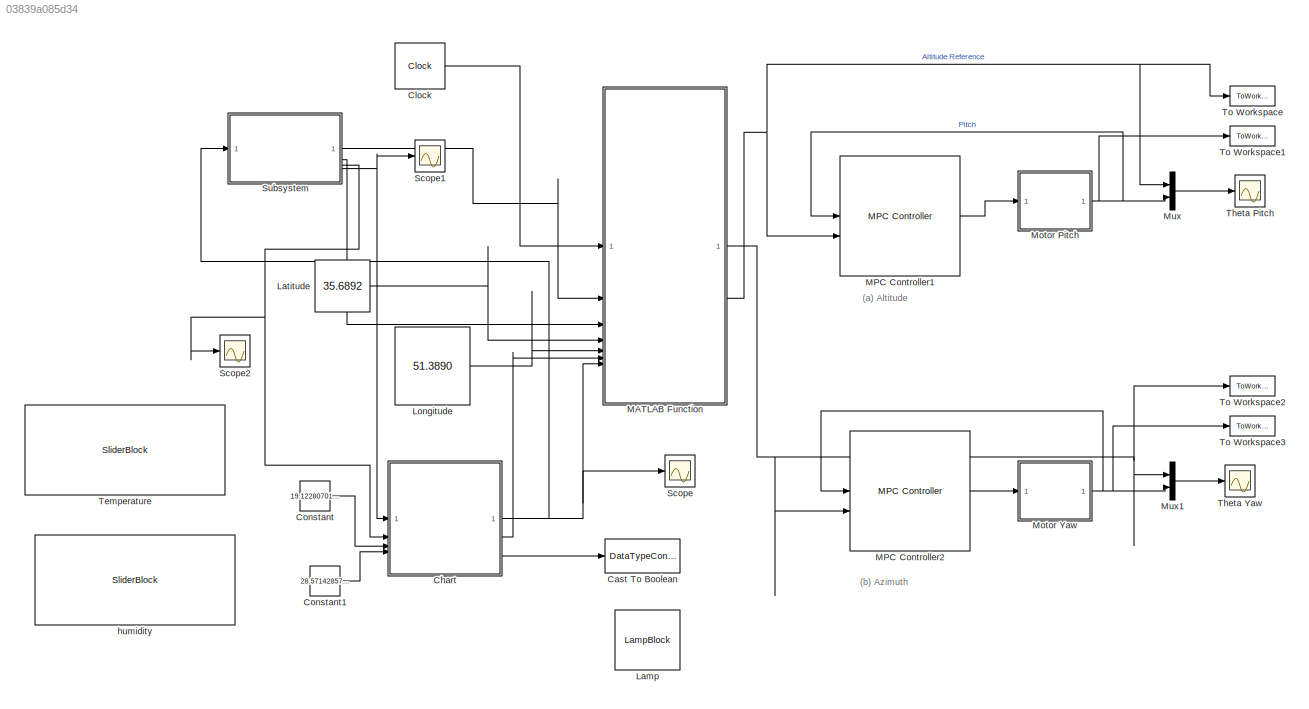
MODEL slx_03839a085d34
KIND model
CONFIG AbsTol = auto
CONFIG EnableMultiTasking = off
CONFIG FixedStep = 0.1
CONFIG InitFcn = clear all\nclc\n%% PARAMETERS OF DC MOTOR\nR=18.2214;\nL=0.000866;\nKb=0.030941093;\nKm=0.030941093;\nJ=0.00009;\nB1=0.000025;\n\n%% LOADING MPC\nload mpc1.mat
CONFIG MaxStep = 1
CONFIG MinStep = auto
CONFIG RelTol = 1e-5
CONFIG SampleTimeConstraint = Unconstrained
CONFIG SolverName = VariableStepAuto
CONFIG StartTime = 0.0
CONFIG StopTime = 86400
BLOCK [DataTypeConversion] Cast To Boolean
  OutDataTypeStr = boolean
  RndMeth = Floor
  SaturateOnIntegerOverflow = off
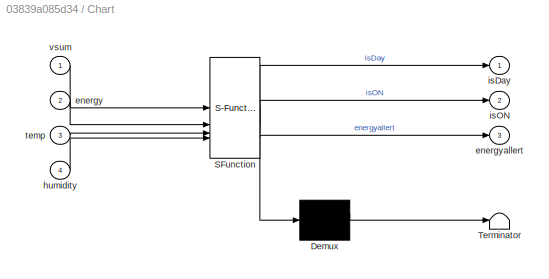
BLOCK [SubSystem] Chart
  ErrorFcn = Stateflow.Translate.translate
  PermitHierarchicalResolution = ExplicitOnly
  PortSchema = {"entries":[{"content":{"sides":[{"content":{"connectorIds":["In2","In1","In3","In4"]},"type":"ConnectorPlacement.EquallySpacedRectSide","uuid":"41b4ae27-8045-4c31-a79d-117f38c1fd05"},{"content":{"connectorIds":["Out1","Out2","Out3"],"side":"RIGHT"},"type":"ConnectorPlacement.EquallySpacedRectSide","uuid":"bf5803f2-d673-4cdf-83cf-d38121fbf371"},{"content":{"connectorIds":[],"side":"TOP"},"type":"C...<+272ch>
  SFBlockType = Chart
  TreatAsAtomicUnit = on
BLOCK [Demux] Chart/ Demux 
  Outputs = 1
BLOCK [S-Function] Chart/ SFunction 
  EnableBusSupport = on
  FunctionName = sf_sfun
  PortCounts = [4 4]
  SFcnIsStateOwnerBlock = off
  SFunctionDeploymentMode = off
  Tag = Stateflow S-Function 3
BLOCK [Terminator] Chart/ Terminator 
BLOCK [Inport] Chart/energy
  Port = 2
BLOCK [Outport] Chart/energyallert
  Port = 3
BLOCK [Inport] Chart/humidity
  Port = 4
BLOCK [Outport] Chart/isDay
BLOCK [Outport] Chart/isON
  Port = 2
BLOCK [Inport] Chart/temp
  Port = 3
BLOCK [Inport] Chart/vsum
BLOCK [Clock] Clock
  Decimation = 86400*121
  DisplayTime = on
BLOCK [Constant] Constant
  Value = 19.12280701754386
BLOCK [Constant] Constant1
  Value = 28.57142857142857
BLOCK [LampBlock] Lamp
  LabelPosition = Hide
BLOCK [Constant] Latitude
  Value = 35.6892
BLOCK [Constant] Longitude
  Value = 51.3890
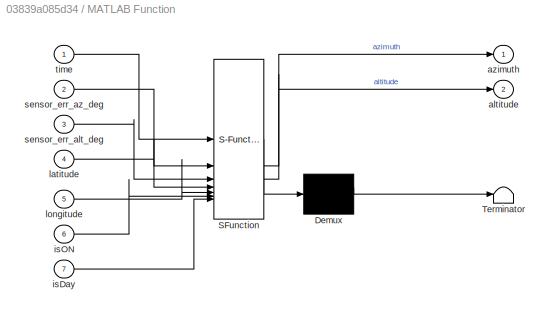
BLOCK [SubSystem] MATLAB Function
  ErrorFcn = Stateflow.Translate.translate
  PermitHierarchicalResolution = ExplicitOnly
  SFBlockType = MATLAB Function
  TreatAsAtomicUnit = on
BLOCK [Demux] MATLAB Function/ Demux 
  Outputs = 1
BLOCK [S-Function] MATLAB Function/ SFunction 
  EnableBusSupport = on
  FunctionName = sf_sfun
  PortCounts = [7 3]
  SFcnIsStateOwnerBlock = off
  SFunctionDeploymentMode = off
  Tag = Stateflow S-Function 2
BLOCK [Terminator] MATLAB Function/ Terminator 
BLOCK [Outport] MATLAB Function/altitude
  Port = 2
BLOCK [Outport] MATLAB Function/azimuth
BLOCK [Inport] MATLAB Function/isDay
  Port = 7
BLOCK [Inport] MATLAB Function/isON
  Port = 6
BLOCK [Inport] MATLAB Function/latitude
  Port = 4
BLOCK [Inport] MATLAB Function/longitude
  Port = 5
BLOCK [Inport] MATLAB Function/sensor_err_alt_deg
  Port = 3
BLOCK [Inport] MATLAB Function/sensor_err_az_deg
  Port = 2
BLOCK [Inport] MATLAB Function/time
BLOCK [Reference] MPC Controller1  REF=mpclib/MPC Controller  (lib defined in mdl_ae329e0e0455)
  SCDEnableBlockLinearizationSpecification = on
  SourceBlock = mpclib/MPC Controller
  SourceType = MPC
BLOCK [Reference] MPC Controller2  REF=mpclib/MPC Controller  (lib defined in mdl_ae329e0e0455)
  SCDEnableBlockLinearizationSpecification = on
  SourceBlock = mpclib/MPC Controller
  SourceType = MPC
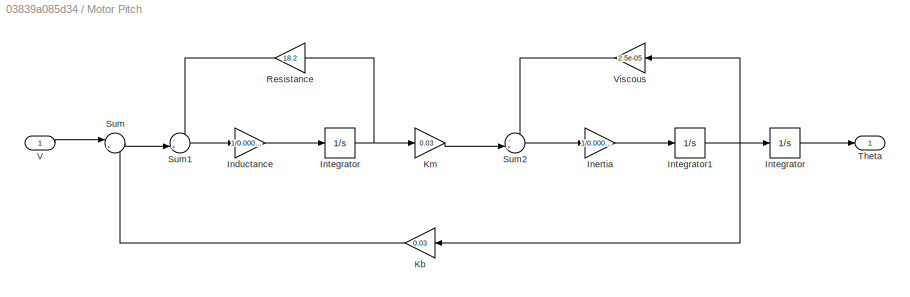
BLOCK [SubSystem] Motor Pitch
BLOCK [Gain] Motor Pitch/Inductance
  Gain = 1/0.00086
BLOCK [Gain] Motor Pitch/Inertia
  Gain = 1/0.00009
BLOCK [Integrator] Motor Pitch/Integrator
BLOCK [Integrator] Motor Pitch/Integrator 
BLOCK [Integrator] Motor Pitch/Integrator1
BLOCK [Gain] Motor Pitch/Kb
  Gain = 0.03
  NameLocation = top
BLOCK [Gain] Motor Pitch/Km
  Gain = 0.03
BLOCK [Gain] Motor Pitch/Resistance
  Gain = 18.2
  NameLocation = top
BLOCK [Sum] Motor Pitch/Sum
  Inputs = |+-
BLOCK [Sum] Motor Pitch/Sum1
  Inputs = -+|
BLOCK [Sum] Motor Pitch/Sum2
  Inputs = -+|
BLOCK [Outport] Motor Pitch/Theta
BLOCK [Inport] Motor Pitch/V
BLOCK [Gain] Motor Pitch/Viscous
  Gain = 2.5e-05
  NameLocation = top
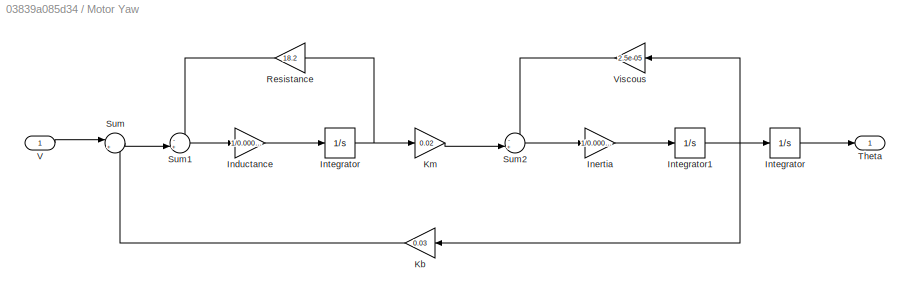
BLOCK [SubSystem] Motor Yaw
BLOCK [Gain] Motor Yaw/Inductance
  Gain = 1/0.00086
BLOCK [Gain] Motor Yaw/Inertia
  Gain = 1/0.00009
BLOCK [Integrator] Motor Yaw/Integrator
BLOCK [Integrator] Motor Yaw/Integrator 
BLOCK [Integrator] Motor Yaw/Integrator1
BLOCK [Gain] Motor Yaw/Kb
  Gain = 0.03
  NameLocation = top
BLOCK [Gain] Motor Yaw/Km
  Gain = 0.02
BLOCK [Gain] Motor Yaw/Resistance
  Gain = 18.2
  NameLocation = top
BLOCK [Sum] Motor Yaw/Sum
  Inputs = |+-
BLOCK [Sum] Motor Yaw/Sum1
  Inputs = -+|
BLOCK [Sum] Motor Yaw/Sum2
  Inputs = -+|
BLOCK [Outport] Motor Yaw/Theta
BLOCK [Inport] Motor Yaw/V
BLOCK [Gain] Motor Yaw/Viscous
  Gain = 2.5e-05
  NameLocation = top
BLOCK [Mux] Mux
  DisplayOption = bar
  Inputs = 2
BLOCK [Mux] Mux1
  DisplayOption = bar
  Inputs = 2
BLOCK [Scope] Scope
  Floating = off
  NumInputPorts = 1
  ScopeSpecificationString = Simulink.scopes.TimeScopeBlockCfg('CurrentConfiguration', extmgr.ConfigurationSet(extmgr.Configuration('Core','General UI',true),extmgr.Configuration('Core','Source UI',true),extmgr.Configuration('Sources','WiredSimulink',true,'DataLoggingVariableName','ScopeData2'),extmgr.Configuration('Visuals','Time Domain',true,'SerializedDisplays',{struct('MinYLimReal','-0.125','MaxYLimReal','1.125','YLabelRe...<+1399ch>
BLOCK [Scope] Scope1
  Floating = off
  NumInputPorts = 1
  ScopeSpecificationString = Simulink.scopes.TimeScopeBlockCfg('CurrentConfiguration', extmgr.ConfigurationSet(extmgr.Configuration('Core','General UI',true),extmgr.Configuration('Core','Source UI',true),extmgr.Configuration('Sources','WiredSimulink',true,'DataLoggingVariableName','ScopeData1'),extmgr.Configuration('Visuals','Time Domain',true,'SerializedDisplays',{struct('MinYLimReal','1.05418','MaxYLimReal','4.32731','YLabe...<+1393ch>
BLOCK [Scope] Scope2
  Floating = off
  NumInputPorts = 1
  ScopeSpecificationString = Simulink.scopes.TimeScopeBlockCfg('CurrentConfiguration', extmgr.ConfigurationSet(extmgr.Configuration('Core','General UI',true),extmgr.Configuration('Core','Source UI',true),extmgr.Configuration('Sources','WiredSimulink',true,'DataLoggingVariableName','ScopeData3'),extmgr.Configuration('Visuals','Time Domain',true,'SerializedDisplays',{struct('MinYLimReal','-0.125','MaxYLimReal','1.125','YLabelRe...<+1438ch>
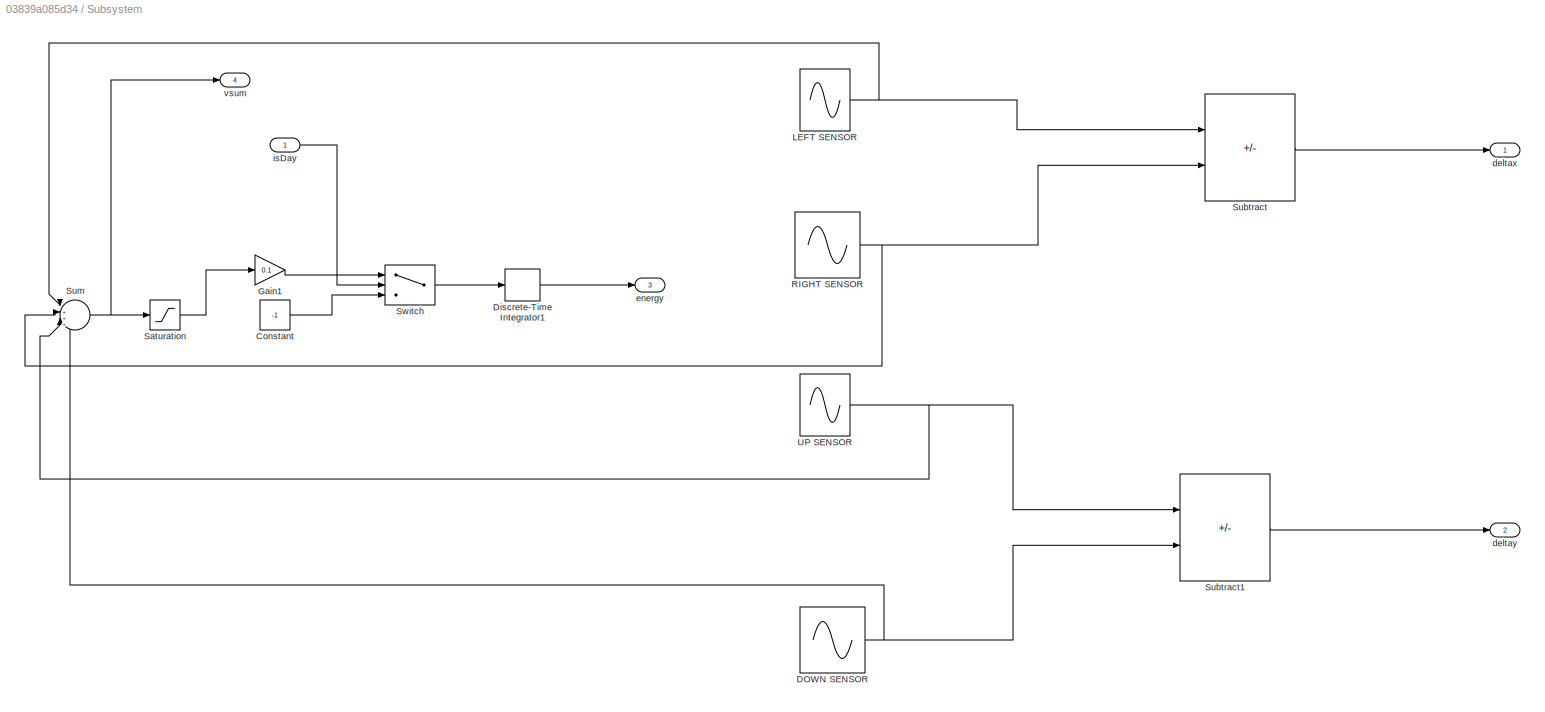
BLOCK [SubSystem] Subsystem
BLOCK [Constant] Subsystem/Constant
  Value = -1
BLOCK [Sin] Subsystem/DOWN SENSOR
  Amplitude = 0.5
  Bias = 0.5
  Frequency = 0.00004
  SampleTime = 0
BLOCK [DiscreteIntegrator] Subsystem/Discrete-Time Integrator1
  ICPrevOutput = DiscIntNeverNeededParam
  ICPrevScaledInput = DiscIntNeverNeededParam
  InitialConditionSetting = Auto
  LimitOutput = on
  LowerSaturationLimit = 0
  SampleTime = -1
  UpperSaturationLimit = 1
  gainval = 1/3600
BLOCK [Gain] Subsystem/Gain1
  Gain = 0.1
BLOCK [Sin] Subsystem/LEFT SENSOR
  Amplitude = 0.5
  Bias = 0.5
  Frequency = 0.00004
  SampleTime = 0
BLOCK [Sin] Subsystem/RIGHT SENSOR
  Amplitude = 0.5
  Bias = 0.5
  Frequency = 0.00004
  SampleTime = 0
BLOCK [Saturate] Subsystem/Saturation
  LowerLimit = 0
  UpperLimit = 1
BLOCK [Sum] Subsystem/Subtract
  IconShape = rectangular
  Inputs = +-
BLOCK [Sum] Subsystem/Subtract1
  IconShape = rectangular
  Inputs = +-
BLOCK [Sum] Subsystem/Sum
  Inputs = |++++
BLOCK [Switch] Subsystem/Switch
  Criteria = u2 > Threshold
  InputSameDT = off
  SaturateOnIntegerOverflow = off
BLOCK [Sin] Subsystem/UP SENSOR
  Amplitude = 0.5
  Bias = 0.5
  Frequency = 0.00004
  SampleTime = 0
BLOCK [Outport] Subsystem/deltax
BLOCK [Outport] Subsystem/deltay
  Port = 2
BLOCK [Outport] Subsystem/energy
  Port = 3
BLOCK [Inport] Subsystem/isDay
BLOCK [Outport] Subsystem/vsum
  Port = 4
BLOCK [SliderBlock] Temperature
BLOCK [Scope] Theta Pitch
  Floating = off
  NumInputPorts = 1
  ScopeSpecificationString = Simulink.scopes.TimeScopeBlockCfg('CurrentConfiguration', extmgr.ConfigurationSet(extmgr.Configuration('Core','General UI',true,'FigureColor',[1 1 1]),extmgr.Configuration('Core','Source UI',true),extmgr.Configuration('Sources','WiredSimulink',true,'DataLoggingVariableName','ScopeData1','DataLoggingMaxPoints','1000','DataLoggingDecimation','1000'),extmgr.Configuration('Visuals','Time Domain',true,...<+1914ch>
BLOCK [Scope] Theta Yaw
  Floating = off
  NumInputPorts = 1
  ScopeSpecificationString = Simulink.scopes.TimeScopeBlockCfg('CurrentConfiguration', extmgr.ConfigurationSet(extmgr.Configuration('Core','General UI',true,'FigureColor',[1 1 1]),extmgr.Configuration('Core','Source UI',true),extmgr.Configuration('Sources','WiredSimulink',true,'DataLoggingVariableName','ScopeData1'),extmgr.Configuration('Visuals','Time Domain',true,'TimeAxisLabels','None','SerializedDisplays',{struct('MinYLim...<+1816ch>
BLOCK [ToWorkspace] To Workspace
  FixptAsFi = on
  MaxDataPoints = inf
  SampleTime = 1
  VariableName = actual1
BLOCK [ToWorkspace] To Workspace1
  FixptAsFi = on
  MaxDataPoints = inf
  SampleTime = 1
  VariableName = model1
BLOCK [ToWorkspace] To Workspace2
  FixptAsFi = on
  MaxDataPoints = inf
  SampleTime = 1
  VariableName = actual2
BLOCK [ToWorkspace] To Workspace3
  FixptAsFi = on
  MaxDataPoints = inf
  SampleTime = 1
  VariableName = model2
BLOCK [SliderBlock] humidity
ANNOTATION (root): (a) Altitude
ANNOTATION (root): (b) Azimuth
NET Chart:1 -> MATLAB Function:7, Scope:1, Subsystem:1
LINE Chart:2 -> MATLAB Function:6
LINE Chart:3 -> Cast To Boolean:1
LINE Clock:1 -> MATLAB Function:1
LINE Constant1:1 -> Chart:4
LINE Constant:1 -> Chart:3
LINE Latitude:1 -> MATLAB Function:4
LINE Longitude:1 -> MATLAB Function:5
NET MATLAB Function:1 -> MPC Controller2:2, Mux1:1, To Workspace2:1
NET MATLAB Function:2 -> MPC Controller1:2, Mux:1, To Workspace:1
LINE MPC Controller1:1 -> Motor Pitch:1
LINE MPC Controller2:1 -> Motor Yaw:1
LINE Motor Pitch/Inductance:1 -> Motor Pitch/Integrator:1
LINE Motor Pitch/Inertia:1 -> Motor Pitch/Integrator1:1
LINE Motor Pitch/Integrator :1 -> Motor Pitch/Theta:1
NET Motor Pitch/Integrator1:1 -> Motor Pitch/Integrator :1, Motor Pitch/Kb:1, Motor Pitch/Viscous:1
NET Motor Pitch/Integrator:1 -> Motor Pitch/Km:1, Motor Pitch/Resistance:1
LINE Motor Pitch/Kb:1 -> Motor Pitch/Sum:2
LINE Motor Pitch/Km:1 -> Motor Pitch/Sum2:2
LINE Motor Pitch/Resistance:1 -> Motor Pitch/Sum1:1
LINE Motor Pitch/Sum1:1 -> Motor Pitch/Inductance:1
LINE Motor Pitch/Sum2:1 -> Motor Pitch/Inertia:1
LINE Motor Pitch/Sum:1 -> Motor Pitch/Sum1:2
LINE Motor Pitch/V:1 -> Motor Pitch/Sum:1
LINE Motor Pitch/Viscous:1 -> Motor Pitch/Sum2:1
NET Motor Pitch:1 -> MPC Controller1:1, Mux:2, To Workspace1:1
LINE Motor Yaw/Inductance:1 -> Motor Yaw/Integrator:1
LINE Motor Yaw/Inertia:1 -> Motor Yaw/Integrator1:1
LINE Motor Yaw/Integrator :1 -> Motor Yaw/Theta:1
NET Motor Yaw/Integrator1:1 -> Motor Yaw/Integrator :1, Motor Yaw/Kb:1, Motor Yaw/Viscous:1
NET Motor Yaw/Integrator:1 -> Motor Yaw/Km:1, Motor Yaw/Resistance:1
LINE Motor Yaw/Kb:1 -> Motor Yaw/Sum:2
LINE Motor Yaw/Km:1 -> Motor Yaw/Sum2:2
LINE Motor Yaw/Resistance:1 -> Motor Yaw/Sum1:1
LINE Motor Yaw/Sum1:1 -> Motor Yaw/Inductance:1
LINE Motor Yaw/Sum2:1 -> Motor Yaw/Inertia:1
LINE Motor Yaw/Sum:1 -> Motor Yaw/Sum1:2
LINE Motor Yaw/V:1 -> Motor Yaw/Sum:1
LINE Motor Yaw/Viscous:1 -> Motor Yaw/Sum2:1
NET Motor Yaw:1 -> MPC Controller2:1, Mux1:2, To Workspace3:1
LINE Mux1:1 -> Theta Yaw:1
LINE Mux:1 -> Theta Pitch:1
LINE Subsystem/Constant:1 -> Subsystem/Switch:3
NET Subsystem/DOWN SENSOR:1 -> Subsystem/Subtract1:2, Subsystem/Sum:4
LINE Subsystem/Discrete-Time Integrator1:1 -> Subsystem/energy:1
LINE Subsystem/Gain1:1 -> Subsystem/Switch:1
NET Subsystem/LEFT SENSOR:1 -> Subsystem/Subtract:1, Subsystem/Sum:1
NET Subsystem/RIGHT SENSOR:1 -> Subsystem/Subtract:2, Subsystem/Sum:2
LINE Subsystem/Saturation:1 -> Subsystem/Gain1:1
LINE Subsystem/Subtract1:1 -> Subsystem/deltay:1
LINE Subsystem/Subtract:1 -> Subsystem/deltax:1
NET Subsystem/Sum:1 -> Subsystem/Saturation:1, Subsystem/vsum:1
LINE Subsystem/Switch:1 -> Subsystem/Discrete-Time Integrator1:1
NET Subsystem/UP SENSOR:1 -> Subsystem/Subtract1:1, Subsystem/Sum:3
LINE Subsystem/isDay:1 -> Subsystem/Switch:2
LINE Subsystem:1 -> MATLAB Function:2
LINE Subsystem:2 -> MATLAB Function:3
NET Subsystem:3 -> Chart:2, Scope2:1
NET Subsystem:4 -> Chart:1, Scope1:1
note: NET lines group one-source signal fan-out (src -> all destinations, sorted); 1:1 wires keep LINE
CHART MATLAB Function states=1 transitions=1
  STATE_LABEL 'eML_blk_kernel()'
  STATE_LABEL 'SCRIPT:\nfunction [azimuth, altitude] = sun(time, sensor_err_az_deg, sensor_err_alt_deg, latitude, longitude, isON, isDay)\n% Outputs are in radians (azimuth in [0,2π), altitude in [0, π/2]).\n% time: seconds (real time). latitude/longitude: degrees.\n\n    persistent lastAz lastAlt\n    if isempty(lastAz),  lastAz  = 0.0; end\n    if isempty(lastAlt), lastAlt = 0.0; end\n\n    azimuth  = lastAz;\n    altit...<+1264ch>'
CHART Chart states=9 transitions=9
  STATE_LABEL 'DayNight'
  STATE_LABEL 'Day'
  STATE_LABEL 'Night'
  STATE_LABEL '[vsum/4 < 0.54]{isDay = false}'
  STATE_LABEL '[vsum/4 > 0.56]{isDay = true}'
  STATE_LABEL 'Day'
  STATE_LABEL 'Night'
  STATE_LABEL 'EnvMonitor'
  STATE_LABEL 'Functioning'
  STATE_LABEL 'fault'
  STATE_LABEL '[(temp > 50) || (humidity >80)]{isON = false}'
  STATE_LABEL '[(temp < 50) && (humidity <78)]{isON = true}'
  STATE_LABEL 'Functioning'
  STATE_LABEL 'fault'
  STATE_LABEL 'EnergyGuard'
  STATE_LABEL 'low'
  STATE_LABEL 'Normal'
  STATE_LABEL '[energy<0.19]{energyallert = true}'
  STATE_LABEL '[energy > 0.21]{energyallert = false}'
  STATE_LABEL 'low'
  STATE_LABEL 'Normal'
CHART  states=0 transitions=0
CHART  states=0 transitions=0
